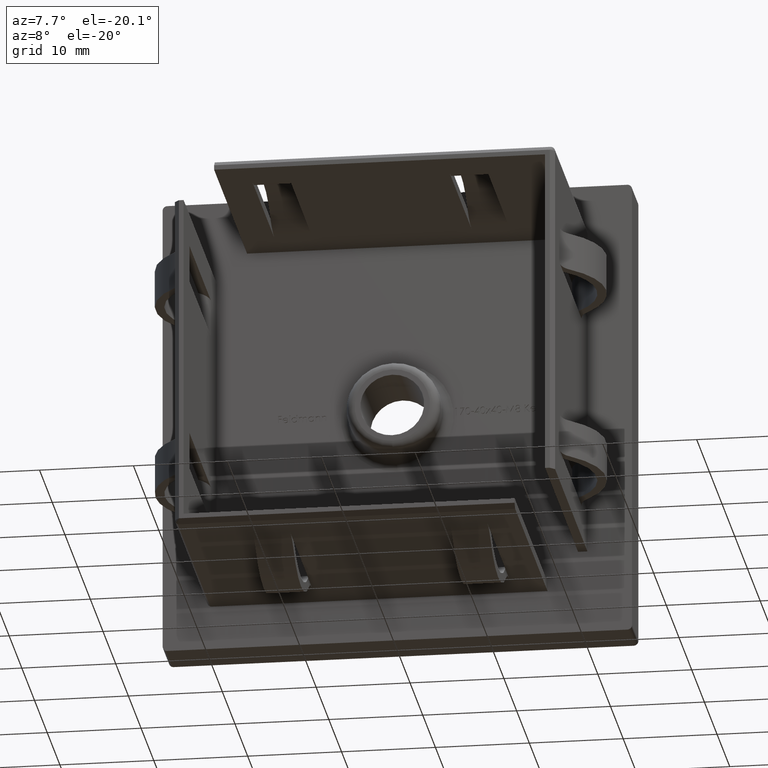
[diagram: clean part render]
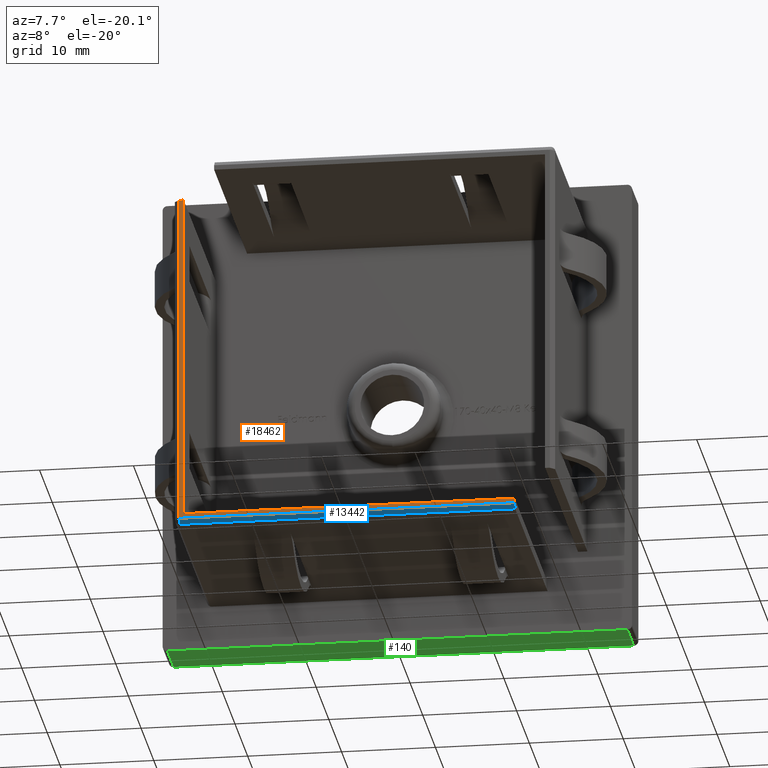
[diagram: same view with three faces highlighted in distinct colors, each labeled with its STEP entity id]
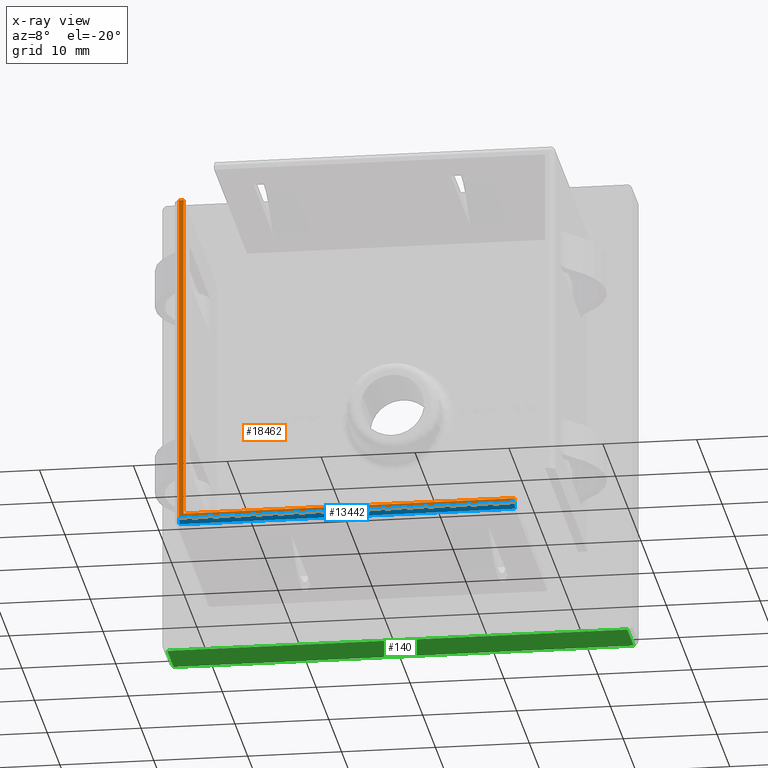
[diagram: x-ray of the same camera — body ghosted, the three highlighted faces saturated]
A machine part, auxiliary view with three faces highlighted in distinct colors.
The next image is the same camera in x-ray (body ghosted, the three faces saturated) — at least one of them is partly hidden behind the body in this view.
Their STEP definitions:

[orange] entity #18462 — the highlighted planar face has unit normal (0, -1, 0).
#211 = CARTESIAN_POINT ( 'NONE',  ( 16.00000000000001100, -26.00000000000000000, -19.75000000000000000 ) ) ;
#595 = VECTOR ( 'NONE', #4264, 1000.000000000000000 ) ;
#1167 = DIRECTION ( 'NONE',  ( 9.842402700577632000E-017, 0.0000000000000000000, 1.000000000000000000 ) ) ;
#1519 = VECTOR ( 'NONE', #1167, 1000.000000000000000 ) ;
#1940 = CARTESIAN_POINT ( 'NONE',  ( -19.74999999999999300, -26.00000000000000000, -19.75000000000000000 ) ) ;
#2099 = ORIENTED_EDGE ( 'NONE', *, *, #4114, .T. ) ;
#2590 = ORIENTED_EDGE ( 'NONE', *, *, #9934, .T. ) ;
#3395 = CARTESIAN_POINT ( 'NONE',  ( 0.0000000000000000000, -26.00000000000000000, 0.0000000000000000000 ) ) ;
#4114 = EDGE_CURVE ( 'NONE', #10187, #15619, #12861, .T. ) ;
#4264 = DIRECTION ( 'NONE',  ( 9.570888143320319300E-017, 0.0000000000000000000, -1.000000000000000000 ) ) ;
#4269 = CARTESIAN_POINT ( 'NONE',  ( 16.00000000000001100, -26.00000000000000000, -20.25000000000000000 ) ) ;
#5369 = LINE ( 'NONE', #14208, #1519 ) ;
#5585 = VECTOR ( 'NONE', #7605, 1000.000000000000000 ) ;
#5972 = ORIENTED_EDGE ( 'NONE', *, *, #10580, .T. ) ;
#6120 = EDGE_CURVE ( 'NONE', #6584, #7312, #11877, .T. ) ;
#6325 = DIRECTION ( 'NONE',  ( 0.0000000000000000000, -1.000000000000000000, 0.0000000000000000000 ) ) ;
#6336 = CARTESIAN_POINT ( 'NONE',  ( -19.74999999999999600, -26.00000000000000000, 15.99999999999999300 ) ) ;
#6388 = ORIENTED_EDGE ( 'NONE', *, *, #17285, .T. ) ;
#6426 = EDGE_CURVE ( 'NONE', #15619, #6584, #5369, .T. ) ;
#6584 = VERTEX_POINT ( 'NONE', #10367 ) ;
#7312 = VERTEX_POINT ( 'NONE', #6336 ) ;
#7578 = FACE_OUTER_BOUND ( 'NONE', #12915, .T. ) ;
#7605 = DIRECTION ( 'NONE',  ( -1.000000000000000000, 0.0000000000000000000, 0.0000000000000000000 ) ) ;
#7679 = VERTEX_POINT ( 'NONE', #1940 ) ;
#7746 = VERTEX_POINT ( 'NONE', #9399 ) ;
#8102 = VECTOR ( 'NONE', #15561, 1000.000000000000000 ) ;
#8287 = CARTESIAN_POINT ( 'NONE',  ( -19.24999999999999600, -26.00000000000000000, -19.25000000000000000 ) ) ;
#8490 = CARTESIAN_POINT ( 'NONE',  ( -19.74999999999999300, -26.00000000000000000, -19.74999999999999600 ) ) ;
#8578 = VECTOR ( 'NONE', #12641, 1000.000000000000000 ) ;
#8927 = CARTESIAN_POINT ( 'NONE',  ( 16.00000000000000700, -26.00000000000000000, -19.24999999999999600 ) ) ;
#9399 = CARTESIAN_POINT ( 'NONE',  ( 16.00000000000001100, -26.00000000000000000, -19.75000000000000000 ) ) ;
#9651 = LINE ( 'NONE', #8490, #595 ) ;
#9934 = EDGE_CURVE ( 'NONE', #7746, #10187, #10597, .T. ) ;
#10187 = VERTEX_POINT ( 'NONE', #8927 ) ;
#10367 = CARTESIAN_POINT ( 'NONE',  ( -19.24999999999999300, -26.00000000000000000, 15.99999999999999300 ) ) ;
#10580 = EDGE_CURVE ( 'NONE', #7679, #7746, #12462, .T. ) ;
#10597 = LINE ( 'NONE', #4269, #8102 ) ;
#10781 = DIRECTION ( 'NONE',  ( 0.0000000000000000000, -0.0000000000000000000, -1.000000000000000000 ) ) ;
#11740 = DIRECTION ( 'NONE',  ( 1.000000000000000000, 0.0000000000000000000, 0.0000000000000000000 ) ) ;
#11877 = LINE ( 'NONE', #18594, #5585 ) ;
#11984 = PLANE ( 'NONE',  #14558 ) ;
#12462 = LINE ( 'NONE', #211, #16747 ) ;
#12584 = CARTESIAN_POINT ( 'NONE',  ( 16.00000000000000700, -26.00000000000000000, -19.24999999999999600 ) ) ;
#12641 = DIRECTION ( 'NONE',  ( -1.000000000000000000, -0.0000000000000000000, -9.842402700577628300E-017 ) ) ;
#12822 = ORIENTED_EDGE ( 'NONE', *, *, #6120, .T. ) ;
#12861 = LINE ( 'NONE', #12584, #8578 ) ;
#12915 = EDGE_LOOP ( 'NONE', ( #6388, #5972, #2590, #2099, #16213, #12822 ) ) ;
#14208 = CARTESIAN_POINT ( 'NONE',  ( -19.24999999999999600, -26.00000000000000000, -19.25000000000000000 ) ) ;
#14558 = AXIS2_PLACEMENT_3D ( 'NONE', #3395, #6325, #10781 ) ;
#15561 = DIRECTION ( 'NONE',  ( -3.469446951953599200E-015, 0.0000000000000000000, 1.000000000000000000 ) ) ;
#15619 = VERTEX_POINT ( 'NONE', #8287 ) ;
#16213 = ORIENTED_EDGE ( 'NONE', *, *, #6426, .T. ) ;
#16747 = VECTOR ( 'NONE', #11740, 1000.000000000000000 ) ;
#17285 = EDGE_CURVE ( 'NONE', #7312, #7679, #9651, .T. ) ;
#18462 = ADVANCED_FACE ( 'NONE', ( #7578 ), #11984, .T. ) ;
#18594 = CARTESIAN_POINT ( 'NONE',  ( -19.24999999999999300, -26.00000000000000000, 15.99999999999999300 ) ) ;

[blue] entity #13442 — the highlighted planar face has unit normal (-0, -0.7071, -0.7071).
#211 = CARTESIAN_POINT ( 'NONE',  ( 16.00000000000001100, -26.00000000000000000, -19.75000000000000000 ) ) ;
#662 = CARTESIAN_POINT ( 'NONE',  ( 0.0000000000000000000, -26.00000000000000000, -19.75000000000000000 ) ) ;
#1197 = EDGE_CURVE ( 'NONE', #7679, #9714, #7774, .T. ) ;
#1940 = CARTESIAN_POINT ( 'NONE',  ( -19.74999999999999300, -26.00000000000000000, -19.75000000000000000 ) ) ;
#2124 = DIRECTION ( 'NONE',  ( -1.000000000000000000, 0.0000000000000000000, 0.0000000000000000000 ) ) ;
#2414 = VECTOR ( 'NONE', #14581, 1000.000000000000000 ) ;
#3337 = VERTEX_POINT ( 'NONE', #18245 ) ;
#3347 = DIRECTION ( 'NONE',  ( 0.0000000000000000000, 0.7071067811865574500, -0.7071067811865376900 ) ) ;
#3393 = AXIS2_PLACEMENT_3D ( 'NONE', #662, #10757, #2124 ) ;
#3598 = VECTOR ( 'NONE', #6793, 1000.000000000000100 ) ;
#4577 = FACE_OUTER_BOUND ( 'NONE', #11660, .T. ) ;
#4874 = ORIENTED_EDGE ( 'NONE', *, *, #9353, .F. ) ;
#5739 = ORIENTED_EDGE ( 'NONE', *, *, #6543, .F. ) ;
#6273 = LINE ( 'NONE', #13130, #2414 ) ;
#6543 = EDGE_CURVE ( 'NONE', #3337, #9714, #6273, .T. ) ;
#6793 = DIRECTION ( 'NONE',  ( 2.453269466693354100E-015, 0.7071067811865573400, -0.7071067811865376900 ) ) ;
#7253 = ORIENTED_EDGE ( 'NONE', *, *, #1197, .T. ) ;
#7640 = CARTESIAN_POINT ( 'NONE',  ( -19.74999999999999300, -26.00000000000000000, -19.75000000000000000 ) ) ;
#7679 = VERTEX_POINT ( 'NONE', #1940 ) ;
#7746 = VERTEX_POINT ( 'NONE', #9399 ) ;
#7774 = LINE ( 'NONE', #7640, #9810 ) ;
#9353 = EDGE_CURVE ( 'NONE', #7746, #3337, #14203, .T. ) ;
#9399 = CARTESIAN_POINT ( 'NONE',  ( 16.00000000000001100, -26.00000000000000000, -19.75000000000000000 ) ) ;
#9618 = CARTESIAN_POINT ( 'NONE',  ( 16.00000000000001100, -26.00000000000002500, -19.74999999999997200 ) ) ;
#9714 = VERTEX_POINT ( 'NONE', #15205 ) ;
#9810 = VECTOR ( 'NONE', #3347, 999.9999999999998900 ) ;
#9973 = ORIENTED_EDGE ( 'NONE', *, *, #10580, .F. ) ;
#10580 = EDGE_CURVE ( 'NONE', #7679, #7746, #12462, .T. ) ;
#10757 = DIRECTION ( 'NONE',  ( -0.0000000000000000000, -0.7071067811865376900, -0.7071067811865573400 ) ) ;
#11660 = EDGE_LOOP ( 'NONE', ( #7253, #5739, #4874, #9973 ) ) ;
#11740 = DIRECTION ( 'NONE',  ( 1.000000000000000000, 0.0000000000000000000, 0.0000000000000000000 ) ) ;
#12462 = LINE ( 'NONE', #211, #16747 ) ;
#13130 = CARTESIAN_POINT ( 'NONE',  ( -19.74999999999999300, -25.49999999999998600, -20.25000000000000000 ) ) ;
#13442 = ADVANCED_FACE ( 'NONE', ( #4577 ), #18012, .T. ) ;
#14203 = LINE ( 'NONE', #9618, #3598 ) ;
#14581 = DIRECTION ( 'NONE',  ( -1.000000000000000000, 0.0000000000000000000, -0.0000000000000000000 ) ) ;
#15205 = CARTESIAN_POINT ( 'NONE',  ( -19.74999999999999300, -25.49999999999998600, -20.25000000000000000 ) ) ;
#16747 = VECTOR ( 'NONE', #11740, 1000.000000000000000 ) ;
#18012 = PLANE ( 'NONE',  #3393 ) ;
#18245 = CARTESIAN_POINT ( 'NONE',  ( 16.00000000000001100, -25.49999999999998600, -20.25000000000000000 ) ) ;

[green] entity #140 — the highlighted planar face has unit normal (0, 0, 1).
#140 = ADVANCED_FACE ( 'NONE', ( #2416 ), #13236, .F. ) ;
#371 = DIRECTION ( 'NONE',  ( 1.000000000000000000, 0.0000000000000000000, -0.0000000000000000000 ) ) ;
#688 = DIRECTION ( 'NONE',  ( -1.000000000000000000, -0.0000000000000000000, -0.0000000000000000000 ) ) ;
#1479 = AXIS2_PLACEMENT_3D ( 'NONE', #3389, #10529, #371 ) ;
#2368 = DIRECTION ( 'NONE',  ( -1.000000000000000000, -0.0000000000000000000, -0.0000000000000000000 ) ) ;
#2416 = FACE_OUTER_BOUND ( 'NONE', #3081, .T. ) ;
#2524 = VERTEX_POINT ( 'NONE', #16609 ) ;
#3081 = EDGE_LOOP ( 'NONE', ( #5504, #9939, #17695, #4182 ) ) ;
#3389 = CARTESIAN_POINT ( 'NONE',  ( -25.00000000000001100, 5.000000000000000000, -25.00000000000000000 ) ) ;
#4182 = ORIENTED_EDGE ( 'NONE', *, *, #11465, .T. ) ;
#4226 = VECTOR ( 'NONE', #7434, 1000.000000000000000 ) ;
#4394 = VECTOR ( 'NONE', #14379, 1000.000000000000000 ) ;
#4466 = LINE ( 'NONE', #8768, #4226 ) ;
#5466 = VERTEX_POINT ( 'NONE', #16179 ) ;
#5504 = ORIENTED_EDGE ( 'NONE', *, *, #13515, .F. ) ;
#6508 = VERTEX_POINT ( 'NONE', #10129 ) ;
#6808 = CARTESIAN_POINT ( 'NONE',  ( -25.00000000000001100, 5.000000000000000000, -25.00000000000000000 ) ) ;
#7434 = DIRECTION ( 'NONE',  ( 0.0000000000000000000, -1.000000000000000000, 0.0000000000000000000 ) ) ;
#8768 = CARTESIAN_POINT ( 'NONE',  ( 24.49999999999998900, 5.000000000000000000, -25.00000000000000000 ) ) ;
#9939 = ORIENTED_EDGE ( 'NONE', *, *, #16871, .T. ) ;
#10129 = CARTESIAN_POINT ( 'NONE',  ( 24.49999999999998900, 5.000000000000000000, -25.00000000000000000 ) ) ;
#10529 = DIRECTION ( 'NONE',  ( 0.0000000000000000000, 0.0000000000000000000, 1.000000000000000000 ) ) ;
#11465 = EDGE_CURVE ( 'NONE', #15637, #2524, #12068, .T. ) ;
#12015 = LINE ( 'NONE', #6808, #17659 ) ;
#12068 = LINE ( 'NONE', #13106, #4394 ) ;
#13106 = CARTESIAN_POINT ( 'NONE',  ( -24.50000000000001100, 5.000000000000000000, -25.00000000000000000 ) ) ;
#13236 = PLANE ( 'NONE',  #1479 ) ;
#13515 = EDGE_CURVE ( 'NONE', #6508, #2524, #12015, .T. ) ;
#13546 = CARTESIAN_POINT ( 'NONE',  ( -25.00000000000001100, 0.0000000000000000000, -25.00000000000000000 ) ) ;
#13607 = VECTOR ( 'NONE', #688, 1000.000000000000000 ) ;
#14379 = DIRECTION ( 'NONE',  ( -0.0000000000000000000, 1.000000000000000000, -0.0000000000000000000 ) ) ;
#15475 = LINE ( 'NONE', #13546, #13607 ) ;
#15637 = VERTEX_POINT ( 'NONE', #17178 ) ;
#15726 = EDGE_CURVE ( 'NONE', #5466, #15637, #15475, .T. ) ;
#16179 = CARTESIAN_POINT ( 'NONE',  ( 24.49999999999998900, 0.0000000000000000000, -25.00000000000000000 ) ) ;
#16609 = CARTESIAN_POINT ( 'NONE',  ( -24.50000000000001100, 5.000000000000000000, -25.00000000000000000 ) ) ;
#16871 = EDGE_CURVE ( 'NONE', #6508, #5466, #4466, .T. ) ;
#17178 = CARTESIAN_POINT ( 'NONE',  ( -24.50000000000001100, 0.0000000000000000000, -25.00000000000000000 ) ) ;
#17659 = VECTOR ( 'NONE', #2368, 1000.000000000000000 ) ;
#17695 = ORIENTED_EDGE ( 'NONE', *, *, #15726, .T. ) ;